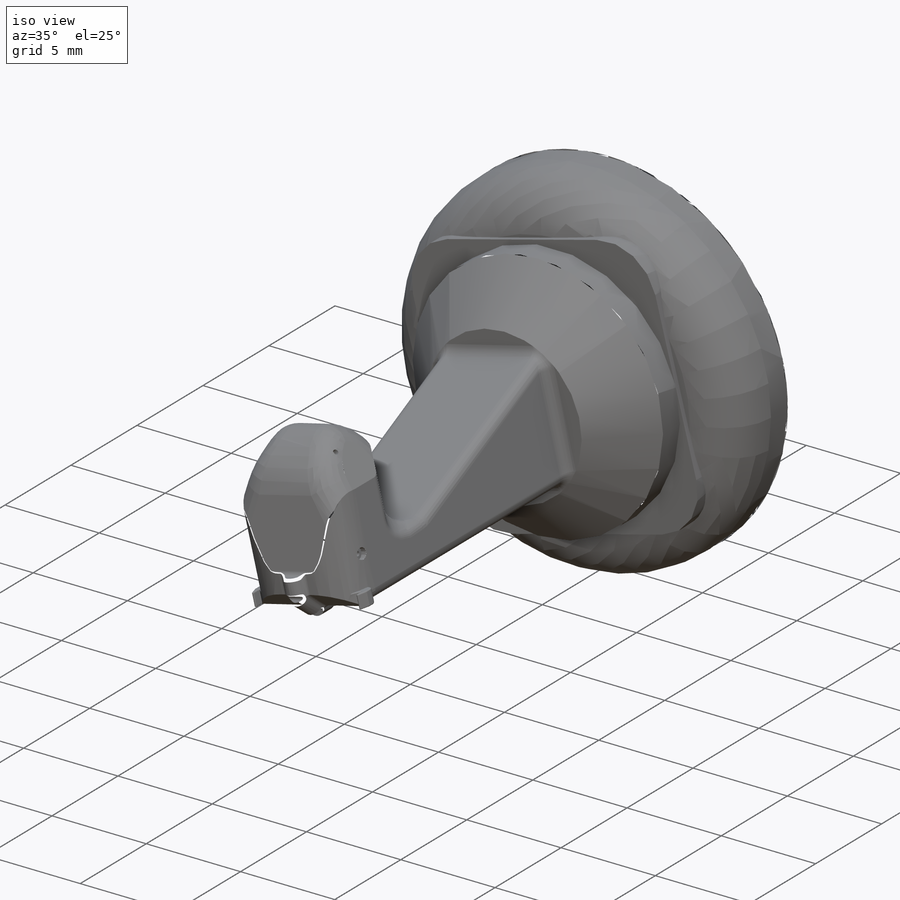
[diagram: iso view]
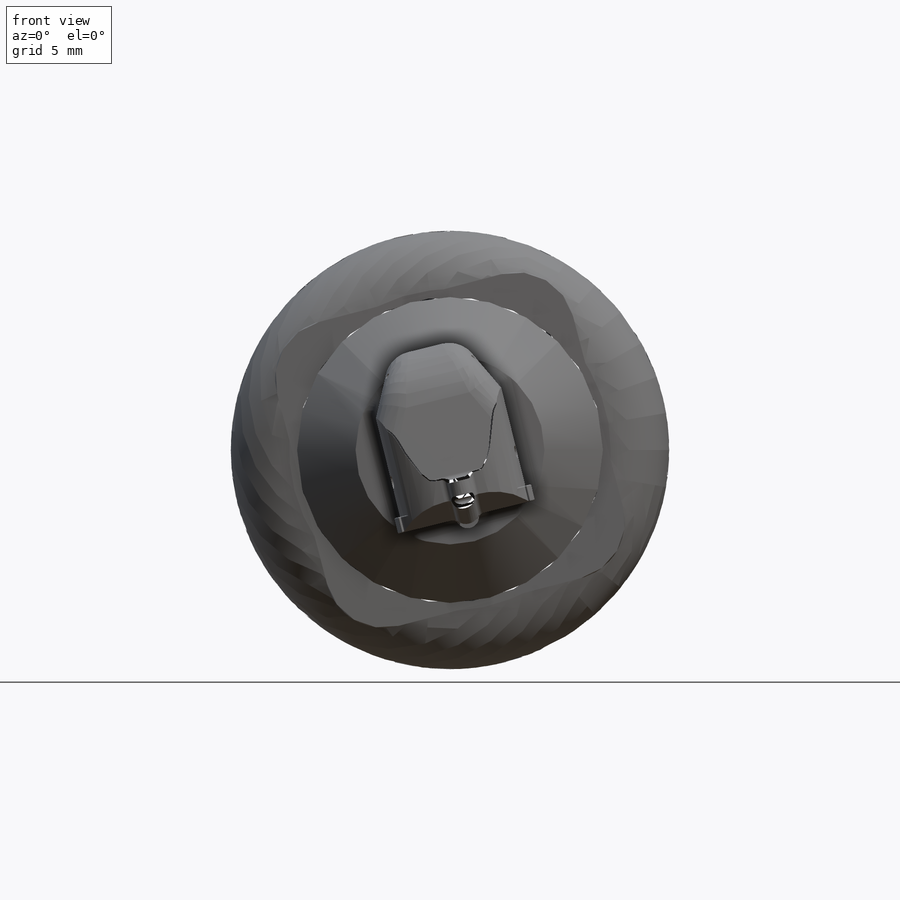
[diagram: front view]
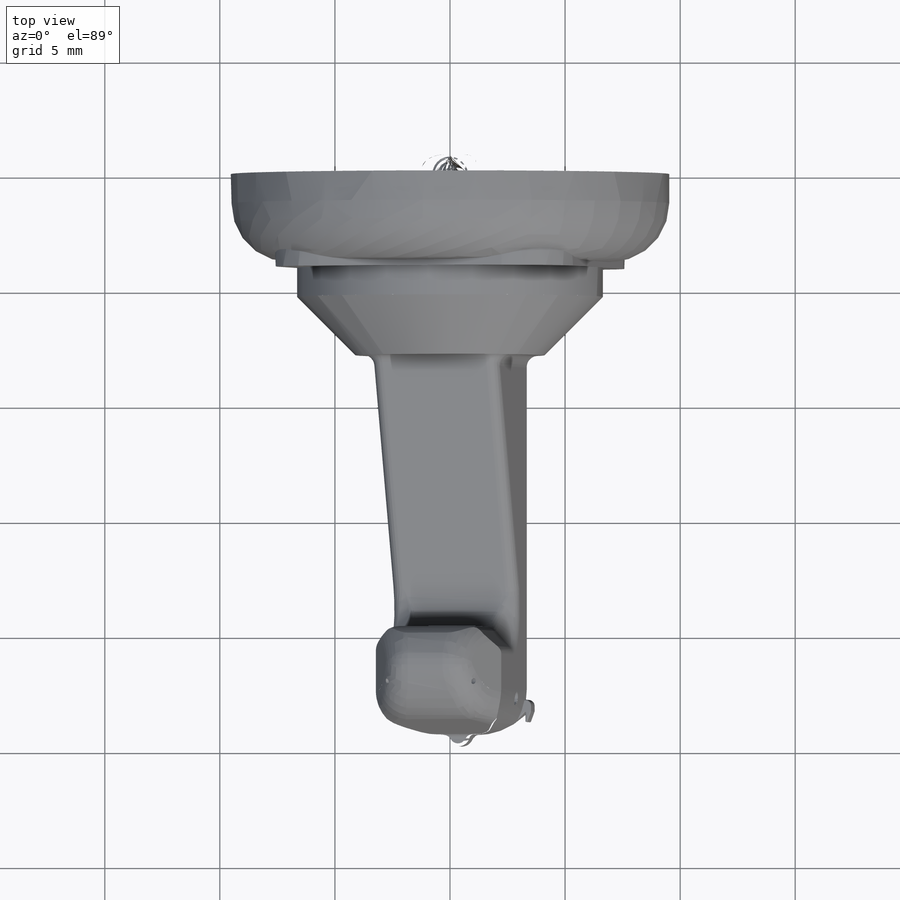
[diagram: top view]
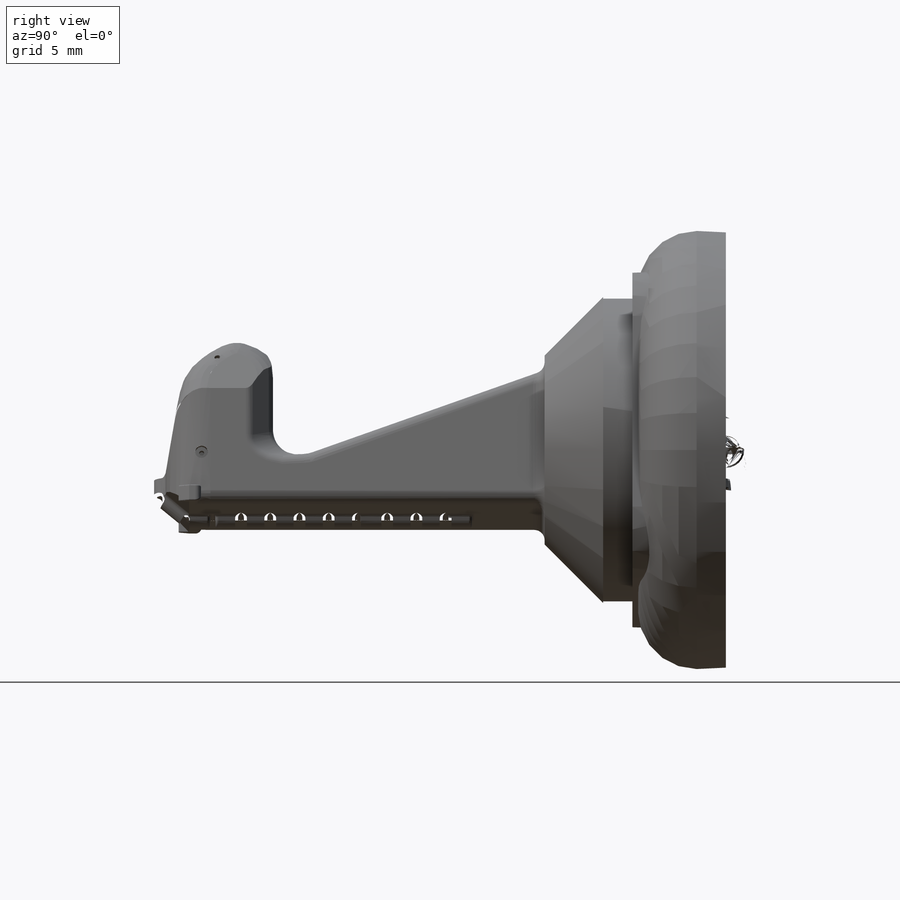
[diagram: right view]
SOLIDWORKS PART (.sldprt)
format: sldprt  version: not decoded by parser v0  size: 2,253,824 bytes
history: native  units: mm
features: fillet x35, sketch x27, extrude x21, chamfer x11, cut_extrude x6, material x1, plane x1 (+12 scaffold rows collapsed)
feature tree (114):
  scaffold x12  (default folders/planes/origin — collapsed)
  material  "ABS"
  sketch  "Sketch9"  dims[D1=19.05mm]
  extrude  "Boss-Extrude4"  Depth=3.81mm
  sketch  "Sketch11"
  extrude  "Boss-Extrude7"  Depth=0.254mm
  sketch  "Sketch13"
  extrude  "Boss-Extrude8"  Depth=3.81mm
  chamfer  "Chamfer3"  Distance=2.54mm Angle=45deg
  fillet  "Fillet2"  Radius=2.54mm
  fillet  "Fillet3"  Radius=2.54mm
  sketch  "Sketch14"
  extrude  "Boss-Extrude11"  Depth=16.51mm
  chamfer  "Chamfer11"  Distance=16.51mm Angle=20deg
  plane  "Plane1"
  sketch  "Sketch17"
  extrude  "Boss-Extrude12"  Depth=7.62mm
  chamfer  "Chamfer12"  Distance=1.27mm
  chamfer  "Chamfer13"  Distance=1.27mm
  chamfer  "Chamfer18"  Distance=2.54mm Angle=40deg
  chamfer  "Chamfer19"  Distance=1.016mm Angle=40deg
  chamfer  "Chamfer20"  Distance=1.016mm Angle=40deg
  chamfer  "Chamfer21"  Distance=1.016mm Angle=40deg
  chamfer  "Chamfer22"  Distance=1.016mm Angle=40deg
  sketch  "Sketch18"
  extrude  "Boss-Extrude13"  Depth=0.254mm
  sketch  "Sketch19"
  extrude  "Boss-Extrude14"  Depth=0.762mm
  sketch  "Sketch20"
  extrude  "Boss-Extrude15"  Depth=0.254mm
  sketch  "Sketch21"
  extrude  "Boss-Extrude16"  Depth=0.762mm
  chamfer  "Chamfer23"  Distance=0.762mm Angle=20deg
  chamfer  "Chamfer24"  Distance=0.762mm Angle=20deg
  sketch  "Sketch22"  dims[D1=0.508mm D2=0.0254mm]
  cut_extrude  "Cut-Extrude3"  Depth=0.254mm
  sketch  "Sketch24"  dims[D1=0.508mm D2=0.0254mm]
  cut_extrude  "Cut-Extrude4"  Depth=0.254mm
  sketch  "Sketch25"
  cut_extrude  "Cut-Extrude5"  Depth=0.254mm
  sketch  "Sketch26"
  cut_extrude  "Cut-Extrude8"  Depth=0.508mm
  sketch  "Sketch27"
  extrude  "Boss-Extrude17"  Depth=0.508mm
  sketch  "Sketch28"
  extrude  "Boss-Extrude19"  Depth=0.508mm
  sketch  "Sketch31"
  extrude  "Boss-Extrude20"  Depth=0.508mm
  sketch  "Sketch32"  dims[D1=0.254mm]
  extrude  "Boss-Extrude22"  Depth=0.508mm
  sketch  "Sketch33"  dims[D1=1.016mm D2=0.254mm]
  extrude  "Boss-Extrude23"  Depth=0.508mm
  sketch  "Sketch34"  dims[D1=0.254mm D2=1.016mm]
  extrude  "Boss-Extrude24"  Depth=0.508mm
  sketch  "Sketch35"  dims[D1=1.016mm D2=0.254mm]
  extrude  "Boss-Extrude25"  Depth=0.508mm
  sketch  "Sketch36"  dims[D1=0.254mm D2=1.016mm]
  extrude  "Boss-Extrude26"  Depth=0.508mm
  sketch  "Sketch37"  dims[D1=0.254mm D2=1.016mm]
  extrude  "Boss-Extrude27"  Depth=0.508mm
  sketch  "Sketch38"  dims[D1=0.254mm D2=1.016mm]
  extrude  "Boss-Extrude28"  Depth=0.508mm
  sketch  "Sketch39"  dims[D1=1.016mm D2=0.254mm]
  extrude  "Boss-Extrude29"  Depth=0.508mm
  sketch  "Sketch40"  dims[D1=0.254mm D2=1.016mm]
  extrude  "Boss-Extrude30"  Depth=0.508mm
  fillet  "Fillet8"  Radius=2.54mm
  fillet  "Fillet9"  Radius=2.54mm
  fillet  "Fillet10"  Radius=2.54mm
  fillet  "Fillet11"  Radius=2.54mm
  fillet  "Fillet12"  Radius=2.54mm
  fillet  "Fillet16"  Radius=1.27mm
  fillet  "Fillet19"  Radius=0.508mm
  fillet  "Fillet20"  Radius=0.508mm
  fillet  "Fillet21"  Radius=0.508mm
  fillet  "Fillet22"  Radius=0.508mm
  fillet  "Fillet23"  Radius=0.508mm
  sketch  "Sketch41"
  cut_extrude  "Cut-Extrude9"  Depth=0.254mm
  sketch  "Sketch44"
  cut_extrude  "Cut-Extrude11"  Depth=0.254mm
  fillet  "Fillet24"  Radius=0.508mm
  fillet  "Fillet27"  Radius=0.254mm
  fillet  "Fillet29"  Radius=0.254mm
  fillet  "Fillet31"  Radius=0.254mm
  fillet  "Fillet32"  Radius=0.254mm
  fillet  "Fillet33"  Radius=0.0508mm
  fillet  "Fillet36"  Radius=1.27mm
  fillet  "Fillet37"  Radius=1.27mm
  fillet  "Fillet38"  Radius=0.0254mm
  fillet  "Fillet42"  Radius=0.0508mm
  fillet  "Fillet43"  Radius=0.0508mm
  fillet  "Fillet44"  Radius=0.0508mm
  fillet  "Fillet45"  Radius=0.0508mm
  fillet  "Fillet47"  Radius=0.254mm
  fillet  "Fillet48"  Radius=0.254mm
  fillet  "Fillet51"  Radius=0.127mm
  fillet  "Fillet53"  Radius=0.0762mm
  fillet  "Fillet55"  Radius=0.127mm
  fillet  "Fillet56"  Radius=0.127mm
  fillet  "Fillet57"  Radius=0.127mm
  fillet  "Fillet58"  Radius=0.127mm
  fillet  "Fillet59"  Radius=0.127mm
decode coverage: 85 of 100 modeling features carry decoded parameters
note: suppression state not decoded; provenance and decode notes live in map.json
